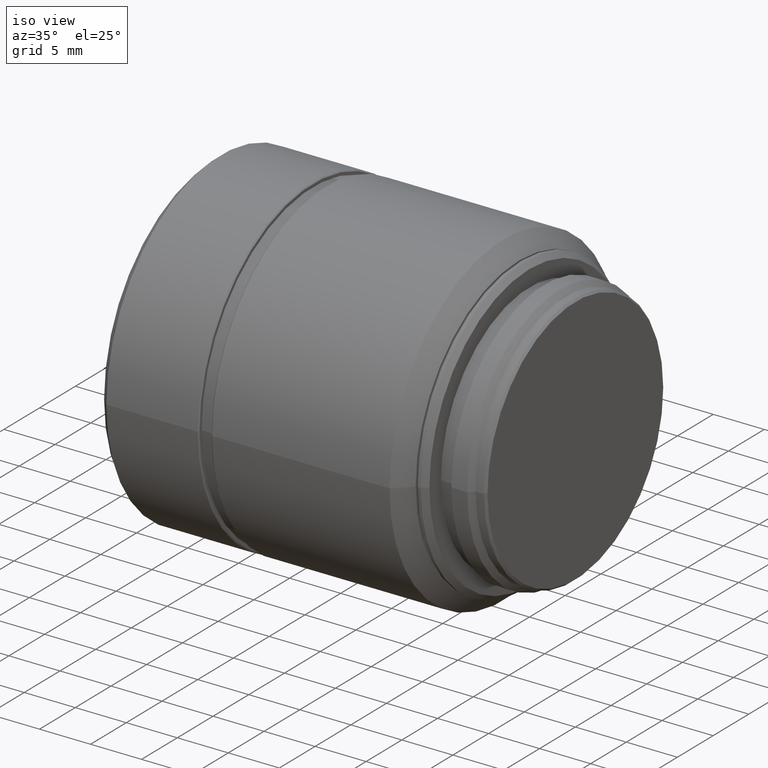
[diagram: clean part render]
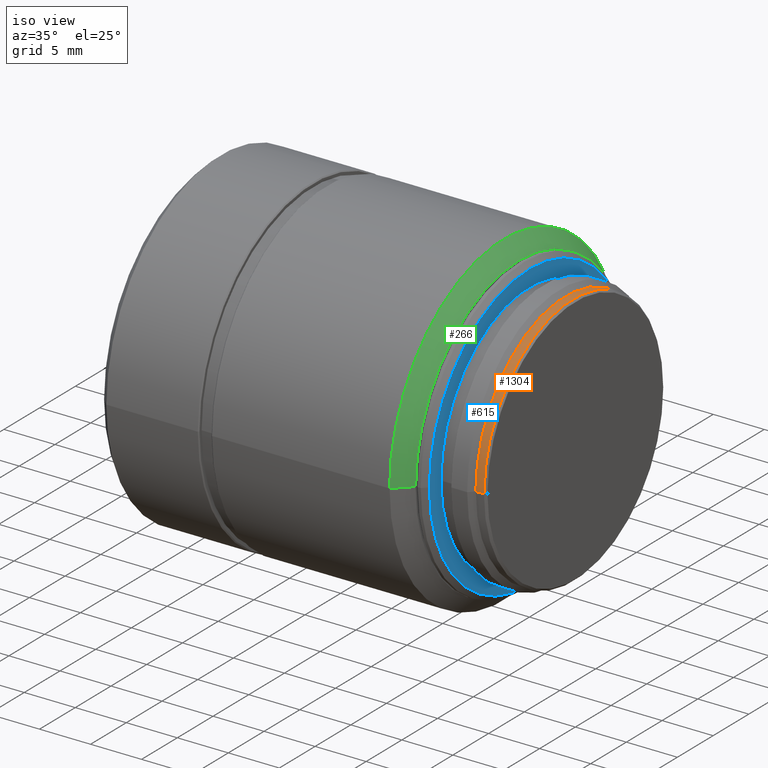
[diagram: same view with three faces highlighted in distinct colors, each labeled with its STEP entity id]
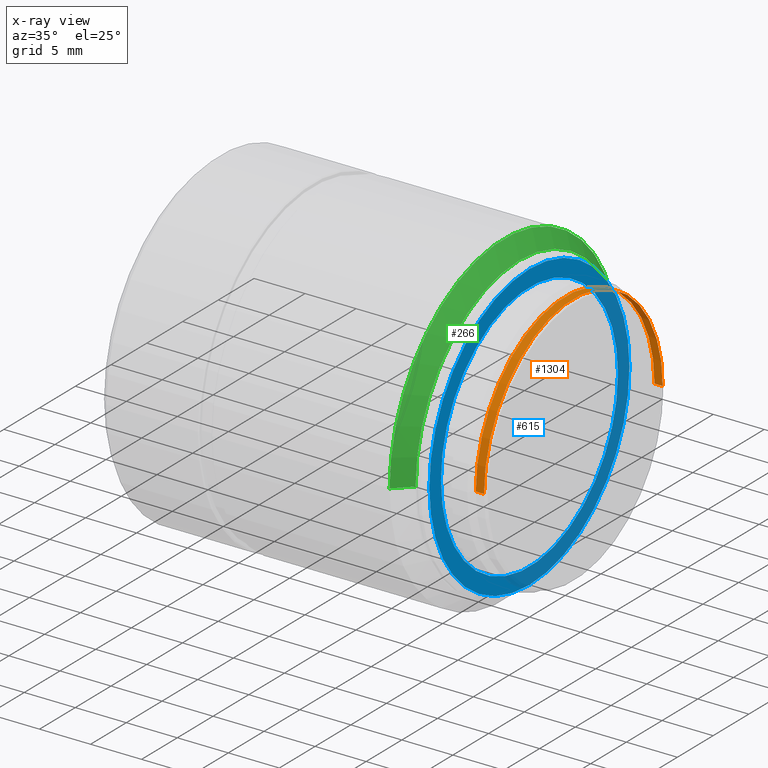
[diagram: x-ray of the same camera — body ghosted, the three highlighted faces saturated]
A machine part, iso view with three faces highlighted in distinct colors.
The next image is the same camera in x-ray (body ghosted, the three faces saturated) — at least one of them is partly hidden behind the body in this view.
Their STEP definitions:

[orange] entity #1304 — the highlighted cylindrical surface (partial cylindrical patch) has radius 12.5 mm, axis along (1, 0, 0).
#4 = DIRECTION ( 'NONE',  ( 0.000000000000000000, 1.000000000000000000, 0.000000000000000000 ) ) ;
#37 = DIRECTION ( 'NONE',  ( 1.000000000000000000, 0.000000000000000000, 0.000000000000000000 ) ) ;
#69 = DIRECTION ( 'NONE',  ( 1.000000000000000000, 0.000000000000000000, 0.000000000000000000 ) ) ;
#121 = EDGE_CURVE ( 'NONE', #586, #1384, #1083, .T. ) ;
#159 = EDGE_CURVE ( 'NONE', #531, #1384, #916, .T. ) ;
#198 = CARTESIAN_POINT ( 'NONE',  ( 28.29999999999999716, -12.50000000000000000, -1.530808498934190141E-15 ) ) ;
#274 = AXIS2_PLACEMENT_3D ( 'NONE', #981, #1362, #1449 ) ;
#279 = VERTEX_POINT ( 'NONE', #855 ) ;
#295 = LINE ( 'NONE', #775, #1036 ) ;
#335 = CARTESIAN_POINT ( 'NONE',  ( 27.90000000000000213, -12.50000000000000000, 0.000000000000000000 ) ) ;
#337 = EDGE_CURVE ( 'NONE', #279, #586, #295, .T. ) ;
#348 = CARTESIAN_POINT ( 'NONE',  ( 27.50000000000000000, -12.50000000000000000, 0.000000000000000000 ) ) ;
#373 = ORIENTED_EDGE ( 'NONE', *, *, #1448, .T. ) ;
#443 = AXIS2_PLACEMENT_3D ( 'NONE', #491, #37, #711 ) ;
#466 = EDGE_LOOP ( 'NONE', ( #592, #1443, #1194, #373 ) ) ;
#491 = CARTESIAN_POINT ( 'NONE',  ( 27.90000000000000213, 0.000000000000000000, 0.000000000000000000 ) ) ;
#531 = VERTEX_POINT ( 'NONE', #348 ) ;
#586 = VERTEX_POINT ( 'NONE', #1173 ) ;
#592 = ORIENTED_EDGE ( 'NONE', *, *, #159, .T. ) ;
#705 = DIRECTION ( 'NONE',  ( 1.000000000000000000, 0.000000000000000000, 0.000000000000000000 ) ) ;
#711 = DIRECTION ( 'NONE',  ( 0.000000000000000000, -1.000000000000000000, 0.000000000000000000 ) ) ;
#775 = CARTESIAN_POINT ( 'NONE',  ( 27.90000000000000213, 12.50000000000000000, -1.530808498934190141E-15 ) ) ;
#805 = AXIS2_PLACEMENT_3D ( 'NONE', #907, #705, #4 ) ;
#834 = FACE_OUTER_BOUND ( 'NONE', #466, .T. ) ;
#855 = CARTESIAN_POINT ( 'NONE',  ( 27.50000000000000000, 12.50000000000000000, -1.530808498934190141E-15 ) ) ;
#907 = CARTESIAN_POINT ( 'NONE',  ( 28.29999999999999716, 0.000000000000000000, 0.000000000000000000 ) ) ;
#916 = LINE ( 'NONE', #335, #1483 ) ;
#981 = CARTESIAN_POINT ( 'NONE',  ( 27.50000000000000000, 0.000000000000000000, 0.000000000000000000 ) ) ;
#1036 = VECTOR ( 'NONE', #69, 1000.000000000000000 ) ;
#1069 = CYLINDRICAL_SURFACE ( 'NONE', #443, 12.50000000000000000 ) ;
#1083 = CIRCLE ( 'NONE', #805, 12.50000000000000000 ) ;
#1166 = DIRECTION ( 'NONE',  ( 1.000000000000000000, 0.000000000000000000, 0.000000000000000000 ) ) ;
#1173 = CARTESIAN_POINT ( 'NONE',  ( 28.29999999999999716, 12.50000000000000000, 0.000000000000000000 ) ) ;
#1194 = ORIENTED_EDGE ( 'NONE', *, *, #337, .F. ) ;
#1304 = ADVANCED_FACE ( 'NONE', ( #834 ), #1069, .T. ) ;
#1362 = DIRECTION ( 'NONE',  ( 1.000000000000000000, 0.000000000000000000, 0.000000000000000000 ) ) ;
#1384 = VERTEX_POINT ( 'NONE', #198 ) ;
#1443 = ORIENTED_EDGE ( 'NONE', *, *, #121, .F. ) ;
#1448 = EDGE_CURVE ( 'NONE', #279, #531, #1488, .T. ) ;
#1449 = DIRECTION ( 'NONE',  ( 0.000000000000000000, 1.000000000000000000, 0.000000000000000000 ) ) ;
#1483 = VECTOR ( 'NONE', #1166, 1000.000000000000000 ) ;
#1488 = CIRCLE ( 'NONE', #274, 12.50000000000000000 ) ;

[blue] entity #615 — the highlighted planar face has unit normal (1, 0, 0).
#27 = CARTESIAN_POINT ( 'NONE',  ( 24.00000000000000000, 14.00000000000000000, 0.000000000000000000 ) ) ;
#52 = CARTESIAN_POINT ( 'NONE',  ( 24.00000000000000000, 0.000000000000000000, 0.000000000000000000 ) ) ;
#116 = DIRECTION ( 'NONE',  ( 0.000000000000000000, 1.000000000000000000, 0.000000000000000000 ) ) ;
#179 = CIRCLE ( 'NONE', #1437, 14.00000000000000000 ) ;
#260 = CARTESIAN_POINT ( 'NONE',  ( 24.00000000000000000, 12.39000000000000057, -1.517337384143570000E-15 ) ) ;
#300 = AXIS2_PLACEMENT_3D ( 'NONE', #589, #1062, #116 ) ;
#316 = EDGE_CURVE ( 'NONE', #1205, #403, #179, .T. ) ;
#357 = EDGE_LOOP ( 'NONE', ( #953, #774 ) ) ;
#368 = AXIS2_PLACEMENT_3D ( 'NONE', #658, #545, #409 ) ;
#403 = VERTEX_POINT ( 'NONE', #1123 ) ;
#409 = DIRECTION ( 'NONE',  ( 0.000000000000000000, 1.000000000000000000, 0.000000000000000000 ) ) ;
#444 = EDGE_CURVE ( 'NONE', #403, #1205, #909, .T. ) ;
#456 = EDGE_CURVE ( 'NONE', #625, #678, #935, .T. ) ;
#545 = DIRECTION ( 'NONE',  ( 1.000000000000000000, 0.000000000000000000, 0.000000000000000000 ) ) ;
#589 = CARTESIAN_POINT ( 'NONE',  ( 24.00000000000000000, 13.19500000000000028, 0.000000000000000000 ) ) ;
#615 = ADVANCED_FACE ( 'NONE', ( #1367, #698 ), #1264, .T. ) ;
#625 = VERTEX_POINT ( 'NONE', #941 ) ;
#653 = EDGE_LOOP ( 'NONE', ( #876, #958 ) ) ;
#658 = CARTESIAN_POINT ( 'NONE',  ( 24.00000000000000000, 0.000000000000000000, 0.000000000000000000 ) ) ;
#671 = CIRCLE ( 'NONE', #836, 12.39000000000000057 ) ;
#678 = VERTEX_POINT ( 'NONE', #260 ) ;
#698 = FACE_BOUND ( 'NONE', #357, .T. ) ;
#702 = DIRECTION ( 'NONE',  ( 0.000000000000000000, 1.000000000000000000, 0.000000000000000000 ) ) ;
#751 = DIRECTION ( 'NONE',  ( 1.000000000000000000, 0.000000000000000000, 0.000000000000000000 ) ) ;
#774 = ORIENTED_EDGE ( 'NONE', *, *, #1363, .F. ) ;
#836 = AXIS2_PLACEMENT_3D ( 'NONE', #1229, #751, #1266 ) ;
#876 = ORIENTED_EDGE ( 'NONE', *, *, #444, .T. ) ;
#909 = CIRCLE ( 'NONE', #368, 14.00000000000000000 ) ;
#935 = CIRCLE ( 'NONE', #1137, 12.39000000000000057 ) ;
#941 = CARTESIAN_POINT ( 'NONE',  ( 24.00000000000000000, -12.39000000000000057, 0.000000000000000000 ) ) ;
#953 = ORIENTED_EDGE ( 'NONE', *, *, #456, .F. ) ;
#958 = ORIENTED_EDGE ( 'NONE', *, *, #316, .T. ) ;
#987 = DIRECTION ( 'NONE',  ( 1.000000000000000000, 0.000000000000000000, 0.000000000000000000 ) ) ;
#1062 = DIRECTION ( 'NONE',  ( 1.000000000000000000, 0.000000000000000000, 0.000000000000000000 ) ) ;
#1123 = CARTESIAN_POINT ( 'NONE',  ( 24.00000000000000000, -14.00000000000000000, -1.714505518806289905E-15 ) ) ;
#1137 = AXIS2_PLACEMENT_3D ( 'NONE', #52, #987, #1445 ) ;
#1205 = VERTEX_POINT ( 'NONE', #27 ) ;
#1229 = CARTESIAN_POINT ( 'NONE',  ( 24.00000000000000000, 0.000000000000000000, 0.000000000000000000 ) ) ;
#1264 = PLANE ( 'NONE',  #300 ) ;
#1266 = DIRECTION ( 'NONE',  ( 0.000000000000000000, 1.000000000000000000, 0.000000000000000000 ) ) ;
#1331 = CARTESIAN_POINT ( 'NONE',  ( 24.00000000000000000, 0.000000000000000000, 0.000000000000000000 ) ) ;
#1363 = EDGE_CURVE ( 'NONE', #678, #625, #671, .T. ) ;
#1367 = FACE_OUTER_BOUND ( 'NONE', #653, .T. ) ;
#1407 = DIRECTION ( 'NONE',  ( 1.000000000000000000, 0.000000000000000000, 0.000000000000000000 ) ) ;
#1437 = AXIS2_PLACEMENT_3D ( 'NONE', #1331, #1407, #702 ) ;
#1445 = DIRECTION ( 'NONE',  ( 0.000000000000000000, 1.000000000000000000, 0.000000000000000000 ) ) ;

[green] entity #266 — the highlighted conical surface has half-angle 45 deg.
#124 = ORIENTED_EDGE ( 'NONE', *, *, #1314, .F. ) ;
#191 = CARTESIAN_POINT ( 'NONE',  ( 21.50000000000000000, 16.00000000000000000, 0.000000000000000000 ) ) ;
#266 = ADVANCED_FACE ( 'NONE', ( #412 ), #442, .T. ) ;
#282 = DIRECTION ( 'NONE',  ( -1.000000000000000000, 0.000000000000000000, 0.000000000000000000 ) ) ;
#293 = DIRECTION ( 'NONE',  ( -0.7071067811865474617, 0.7071067811865474617, 0.000000000000000000 ) ) ;
#304 = VECTOR ( 'NONE', #293, 1000.000000000000114 ) ;
#310 = CARTESIAN_POINT ( 'NONE',  ( 21.50000000000000000, -16.00000000000000000, -1.959434878635769865E-15 ) ) ;
#331 = VERTEX_POINT ( 'NONE', #401 ) ;
#359 = DIRECTION ( 'NONE',  ( -0.7071067811865474617, -0.7071067811865474617, -8.659560562354911904E-17 ) ) ;
#401 = CARTESIAN_POINT ( 'NONE',  ( 21.50000000000000000, 16.00000000000000000, 0.000000000000000000 ) ) ;
#412 = FACE_OUTER_BOUND ( 'NONE', #846, .T. ) ;
#425 = ORIENTED_EDGE ( 'NONE', *, *, #493, .F. ) ;
#442 = CONICAL_SURFACE ( 'NONE', #982, 16.00000000000000000, 0.7853981633974476129 ) ;
#493 = EDGE_CURVE ( 'NONE', #1185, #725, #959, .T. ) ;
#502 = CARTESIAN_POINT ( 'NONE',  ( 21.50000000000000000, -16.00000000000000000, -1.959434878635769865E-15 ) ) ;
#628 = CARTESIAN_POINT ( 'NONE',  ( 23.00000000000000000, -14.50000000000000000, -1.775737858763660240E-15 ) ) ;
#669 = ORIENTED_EDGE ( 'NONE', *, *, #852, .T. ) ;
#706 = CARTESIAN_POINT ( 'NONE',  ( 23.00000000000000000, 0.000000000000000000, 0.000000000000000000 ) ) ;
#725 = VERTEX_POINT ( 'NONE', #628 ) ;
#726 = CARTESIAN_POINT ( 'NONE',  ( 23.00000000000000000, 14.50000000000000000, 0.000000000000000000 ) ) ;
#745 = DIRECTION ( 'NONE',  ( 0.000000000000000000, 1.000000000000000000, 0.000000000000000000 ) ) ;
#761 = CARTESIAN_POINT ( 'NONE',  ( 21.50000000000000000, 0.000000000000000000, 0.000000000000000000 ) ) ;
#833 = AXIS2_PLACEMENT_3D ( 'NONE', #706, #1293, #1054 ) ;
#846 = EDGE_LOOP ( 'NONE', ( #1320, #669, #124, #425 ) ) ;
#852 = EDGE_CURVE ( 'NONE', #331, #872, #1016, .T. ) ;
#868 = DIRECTION ( 'NONE',  ( 0.000000000000000000, 1.000000000000000000, 0.000000000000000000 ) ) ;
#872 = VERTEX_POINT ( 'NONE', #310 ) ;
#887 = EDGE_CURVE ( 'NONE', #1185, #331, #1221, .T. ) ;
#938 = LINE ( 'NONE', #502, #1187 ) ;
#959 = CIRCLE ( 'NONE', #833, 14.50000000000000000 ) ;
#982 = AXIS2_PLACEMENT_3D ( 'NONE', #1097, #282, #745 ) ;
#1016 = CIRCLE ( 'NONE', #1042, 16.00000000000000000 ) ;
#1042 = AXIS2_PLACEMENT_3D ( 'NONE', #761, #1134, #868 ) ;
#1054 = DIRECTION ( 'NONE',  ( 0.000000000000000000, 1.000000000000000000, 0.000000000000000000 ) ) ;
#1097 = CARTESIAN_POINT ( 'NONE',  ( 21.50000000000000000, 0.000000000000000000, 0.000000000000000000 ) ) ;
#1134 = DIRECTION ( 'NONE',  ( 1.000000000000000000, 0.000000000000000000, 0.000000000000000000 ) ) ;
#1185 = VERTEX_POINT ( 'NONE', #726 ) ;
#1187 = VECTOR ( 'NONE', #359, 1000.000000000000114 ) ;
#1221 = LINE ( 'NONE', #191, #304 ) ;
#1293 = DIRECTION ( 'NONE',  ( 1.000000000000000000, 0.000000000000000000, 0.000000000000000000 ) ) ;
#1314 = EDGE_CURVE ( 'NONE', #725, #872, #938, .T. ) ;
#1320 = ORIENTED_EDGE ( 'NONE', *, *, #887, .T. ) ;